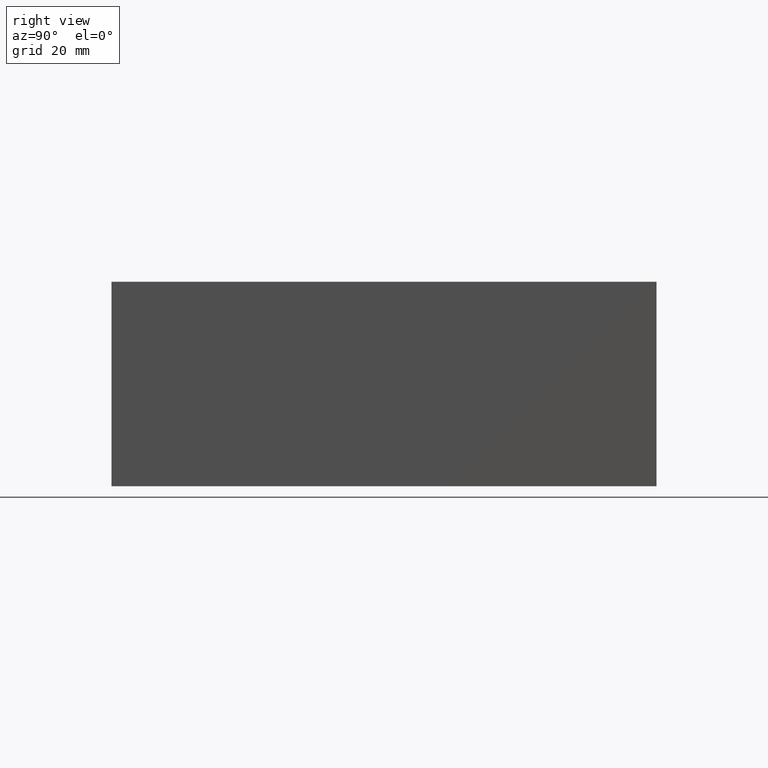
[diagram: clean part render]
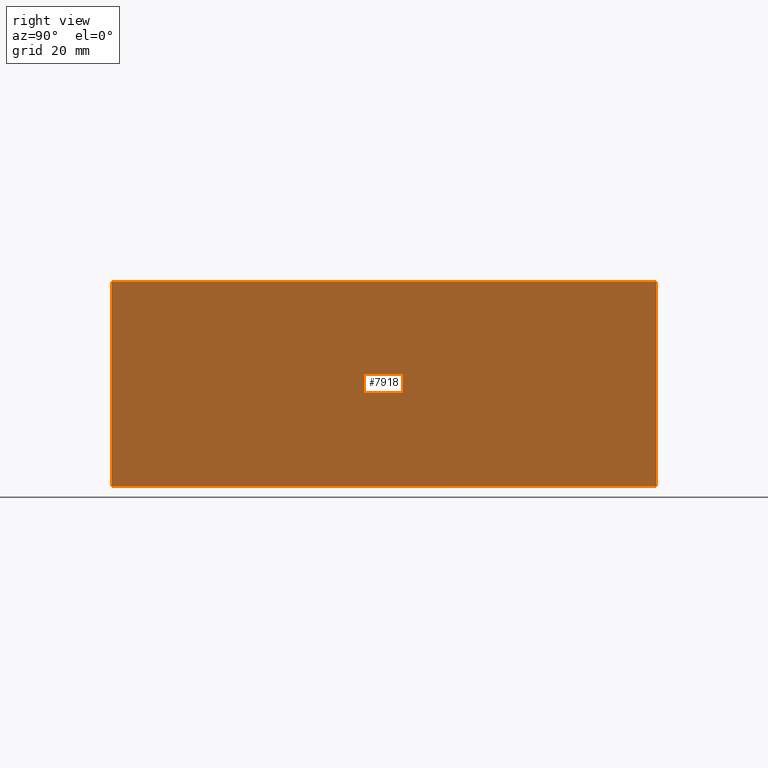
[diagram: same view with one face highlighted and labeled with its STEP entity id]
A machine part, right view. The second image highlights one B-rep face of the part: STEP entity #7918.
In plain terms, the highlighted planar face has unit normal (1, 0, 0).
Its self-contained STEP definition (entity closure, byte-faithful):
#1221=FACE_OUTER_BOUND('',#1677,.T.);
#1677=EDGE_LOOP('',(#7215,#7216,#7217,#7218));
#1703=LINE('',#10042,#2494);
#2029=LINE('',#12090,#2820);
#2481=LINE('',#13358,#3272);
#2482=LINE('',#13360,#3273);
#2494=VECTOR('',#8388,10.);
#2820=VECTOR('',#8946,10.);
#3272=VECTOR('',#10004,10.);
#3273=VECTOR('',#10007,10.);
#3283=VERTEX_POINT('',#10036);
#3285=VERTEX_POINT('',#10040);
#3627=VERTEX_POINT('',#12089);
#4012=VERTEX_POINT('',#13356);
#4026=EDGE_CURVE('',#3283,#3285,#1703,.T.);
#4531=EDGE_CURVE('',#3283,#3627,#2029,.T.);
#5090=EDGE_CURVE('',#3285,#4012,#2481,.T.);
#5091=EDGE_CURVE('',#3627,#4012,#2482,.T.);
#7215=ORIENTED_EDGE('',*,*,#4026,.T.);
#7216=ORIENTED_EDGE('',*,*,#5090,.T.);
#7217=ORIENTED_EDGE('',*,*,#5091,.F.);
#7218=ORIENTED_EDGE('',*,*,#4531,.F.);
#7517=PLANE('',#8360);
#7918=ADVANCED_FACE('',(#1221),#7517,.T.);
#8360=AXIS2_PLACEMENT_3D('',#13359,#10005,#10006);
#8388=DIRECTION('',(0.,1.,0.));
#8946=DIRECTION('',(0.,0.,1.));
#10004=DIRECTION('',(0.,0.,1.));
#10005=DIRECTION('center_axis',(1.,0.,0.));
#10006=DIRECTION('ref_axis',(0.,1.,0.));
#10007=DIRECTION('',(0.,1.,0.));
#10036=CARTESIAN_POINT('',(82.55,0.,0.));
#10040=CARTESIAN_POINT('',(82.55,101.6,0.));
#10042=CARTESIAN_POINT('',(82.55,0.,0.));
#12089=CARTESIAN_POINT('',(82.55,0.,38.1));
#12090=CARTESIAN_POINT('',(82.55,0.,0.));
#13356=CARTESIAN_POINT('',(82.55,101.6,38.1));
#13358=CARTESIAN_POINT('',(82.55,101.6,0.));
#13359=CARTESIAN_POINT('Origin',(82.55,0.,0.));
#13360=CARTESIAN_POINT('',(82.55,0.,38.1));